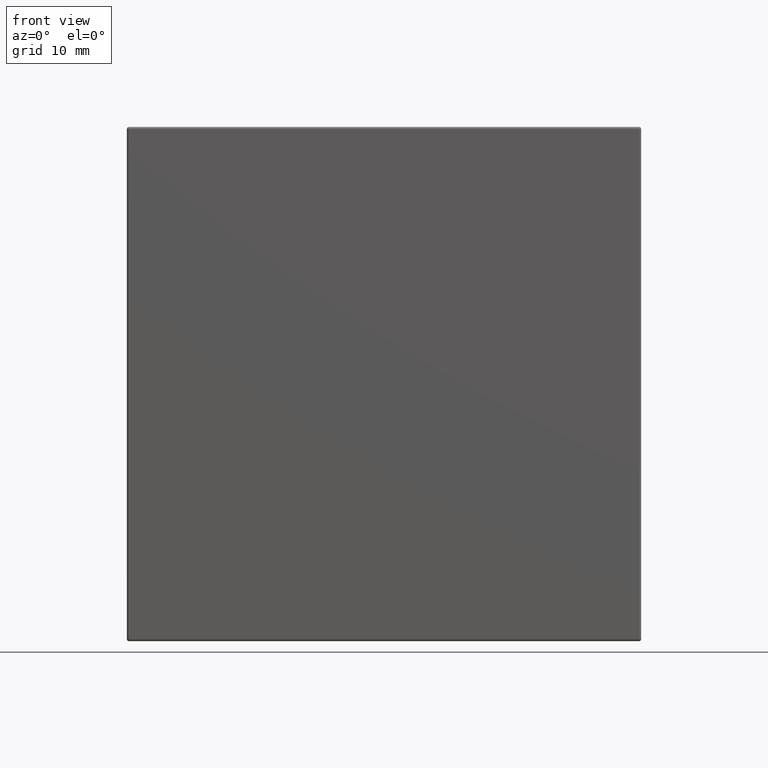
[diagram: clean part render]
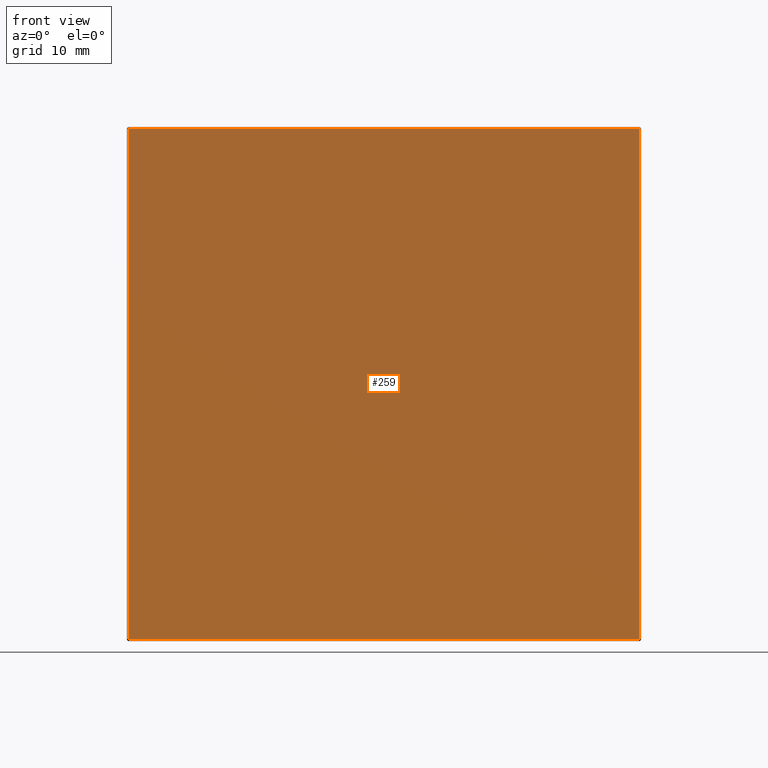
[diagram: same view with one face highlighted and labeled with its STEP entity id]
A machine part, front view. The second image highlights one B-rep face of the part: STEP entity #259.
In plain terms, the highlighted planar face has unit normal (0, -1, 0).
Its self-contained STEP definition (entity closure, byte-faithful):
#177 = CARTESIAN_POINT ( 'NONE',  ( 30.00000000000000400, 6.938893903907228400E-015, -59.74999999990382800 ) ) ;
#178 = DIRECTION ( 'NONE',  ( 1.000000000000000000, 0.0000000000000000000, 0.0000000000000000000 ) ) ;
#179 = CARTESIAN_POINT ( 'NONE',  ( 59.74999999990382800, 6.938893903907228400E-015, -30.00000000000000400 ) ) ;
#180 = DIRECTION ( 'NONE',  ( 0.0000000000000000000, 0.0000000000000000000, 1.000000000000000000 ) ) ;
#181 = CARTESIAN_POINT ( 'NONE',  ( 30.00000000000000400, 2.389836493632053700E-017, -0.2500000000961724000 ) ) ;
#182 = DIRECTION ( 'NONE',  ( -1.000000000000000000, 0.0000000000000000000, 0.0000000000000000000 ) ) ;
#183 = CARTESIAN_POINT ( 'NONE',  ( 0.2500000000961724000, 2.389836493632053700E-017, -30.00000000000000400 ) ) ;
#184 = DIRECTION ( 'NONE',  ( 0.0000000000000000000, 0.0000000000000000000, -1.000000000000000000 ) ) ;
#259 = ADVANCED_FACE ( 'NONE', ( #447 ), #980, .T. ) ;
#338 = AXIS2_PLACEMENT_3D ( 'NONE', #981, #982, #983 ) ;
#447 = FACE_OUTER_BOUND ( 'NONE', #1265, .T. ) ;
#574 = VERTEX_POINT ( 'NONE', #1553 ) ;
#578 = VERTEX_POINT ( 'NONE', #1557 ) ;
#600 = VERTEX_POINT ( 'NONE', #1577 ) ;
#627 = VERTEX_POINT ( 'NONE', #1588 ) ;
#980 = PLANE ( 'NONE',  #338 ) ;
#981 = CARTESIAN_POINT ( 'NONE',  ( 0.2500000000000000000, 0.0000000000000000000, -0.2500000000000000000 ) ) ;
#982 = DIRECTION ( 'NONE',  ( 0.0000000000000000000, -1.000000000000000000, 0.0000000000000000000 ) ) ;
#983 = DIRECTION ( 'NONE',  ( 0.0000000000000000000, 0.0000000000000000000, -1.000000000000000000 ) ) ;
#1115 = ORIENTED_EDGE ( 'NONE', *, *, #1647, .T. ) ;
#1119 = ORIENTED_EDGE ( 'NONE', *, *, #1648, .T. ) ;
#1120 = ORIENTED_EDGE ( 'NONE', *, *, #1649, .T. ) ;
#1121 = ORIENTED_EDGE ( 'NONE', *, *, #1650, .T. ) ;
#1265 = EDGE_LOOP ( 'NONE', ( #1115, #1119, #1120, #1121 ) ) ;
#1553 = CARTESIAN_POINT ( 'NONE',  ( 59.74999999995191000, 3.421211434563419100E-015, -0.2500000000480879800 ) ) ;
#1557 = CARTESIAN_POINT ( 'NONE',  ( 59.74999999995191000, 6.830473686658677900E-015, -59.74999999995191000 ) ) ;
#1577 = CARTESIAN_POINT ( 'NONE',  ( 0.2500000000480879800, 1.194918246816026800E-017, -0.2500000000480879800 ) ) ;
#1588 = CARTESIAN_POINT ( 'NONE',  ( 0.2500000000480879800, 3.421211434563419100E-015, -59.74999999995191000 ) ) ;
#1647 = EDGE_CURVE ( 'NONE', #627, #578, #1728, .T. ) ;
#1648 = EDGE_CURVE ( 'NONE', #578, #574, #1731, .T. ) ;
#1649 = EDGE_CURVE ( 'NONE', #574, #600, #1733, .T. ) ;
#1650 = EDGE_CURVE ( 'NONE', #600, #627, #1741, .T. ) ;
#1728 = LINE ( 'NONE', #177, #1730 ) ;
#1730 = VECTOR ( 'NONE', #178, 1000.000000000000000 ) ;
#1731 = LINE ( 'NONE', #179, #1732 ) ;
#1732 = VECTOR ( 'NONE', #180, 1000.000000000000000 ) ;
#1733 = LINE ( 'NONE', #181, #1742 ) ;
#1741 = LINE ( 'NONE', #183, #1743 ) ;
#1742 = VECTOR ( 'NONE', #182, 1000.000000000000000 ) ;
#1743 = VECTOR ( 'NONE', #184, 1000.000000000000000 ) ;